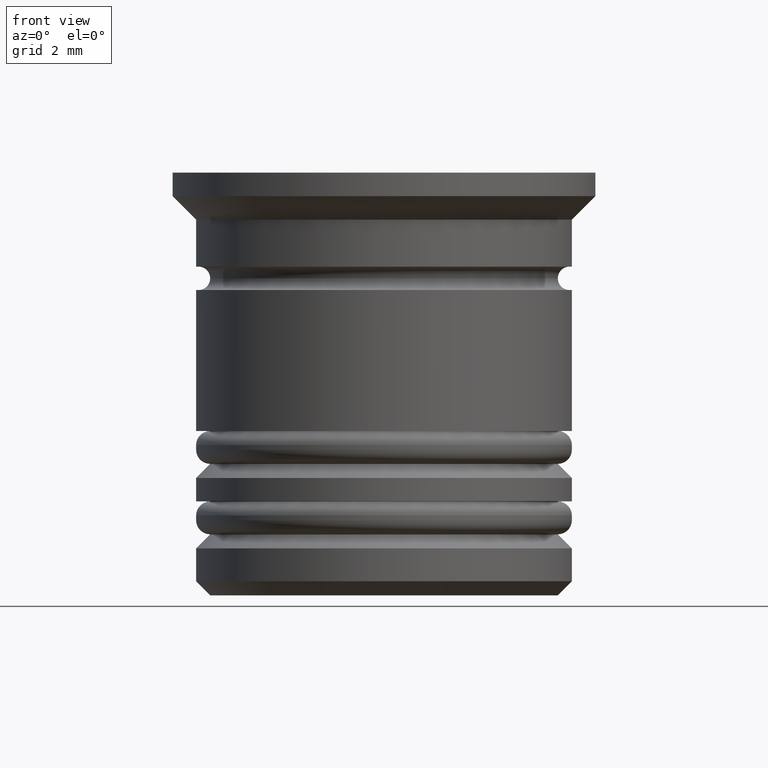
[diagram: clean part render]
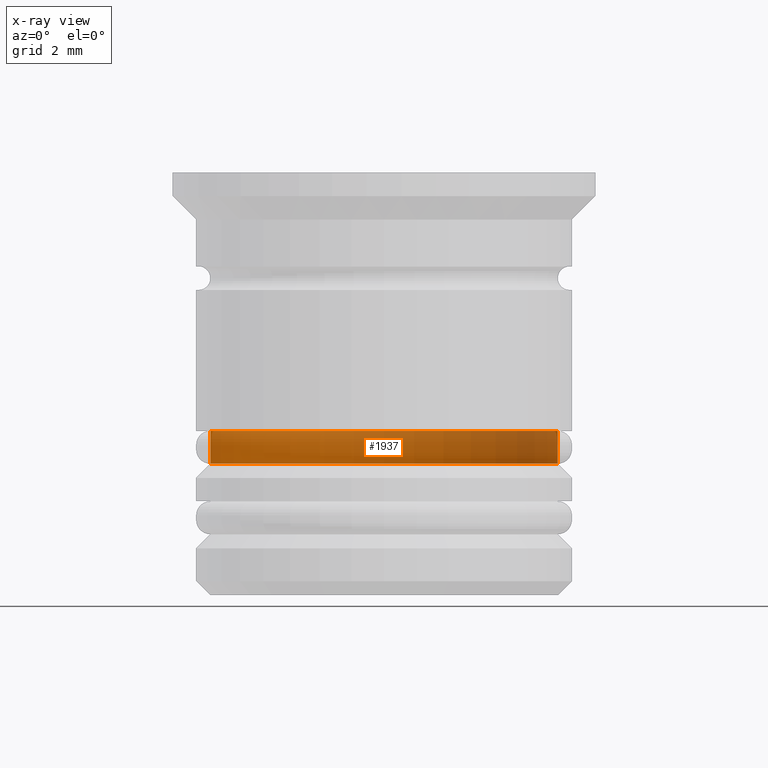
[diagram: x-ray — body ghosted, one internal face saturated and labeled with its STEP entity id]
A machine part, front view, then the same camera in x-ray: the body is ghosted and one INTERNAL B-rep face — a face not visible from any outside direction — is saturated and labeled: STEP entity #1937.
In plain terms, the highlighted cylindrical surface (partial cylindrical patch) has radius 3.7 mm, axis along (-0, -0, 1).
Its self-contained STEP definition (entity closure, byte-faithful):
#14 = ORIENTED_EDGE ( 'NONE', *, *, #2022, .F. ) ;
#25 = VERTEX_POINT ( 'NONE', #974 ) ;
#32 = EDGE_LOOP ( 'NONE', ( #814, #1965, #14, #1527 ) ) ;
#47 = CARTESIAN_POINT ( 'NONE',  ( 3.700000000000000178, 0.000000000000000000, -5.500000000000000000 ) ) ;
#119 = DIRECTION ( 'NONE',  ( -0.000000000000000000, -0.000000000000000000, 1.000000000000000000 ) ) ;
#214 = CIRCLE ( 'NONE', #1767, 3.700000000000000178 ) ;
#269 = DIRECTION ( 'NONE',  ( -0.000000000000000000, -0.000000000000000000, 1.000000000000000000 ) ) ;
#282 = DIRECTION ( 'NONE',  ( 1.000000000000000000, 0.000000000000000000, 0.000000000000000000 ) ) ;
#325 = DIRECTION ( 'NONE',  ( -1.000000000000000000, 0.000000000000000000, 0.000000000000000000 ) ) ;
#332 = EDGE_CURVE ( 'NONE', #1853, #25, #214, .T. ) ;
#404 = DIRECTION ( 'NONE',  ( 1.000000000000000000, 0.000000000000000000, 0.000000000000000000 ) ) ;
#528 = DIRECTION ( 'NONE',  ( -0.000000000000000000, -0.000000000000000000, 1.000000000000000000 ) ) ;
#566 = CYLINDRICAL_SURFACE ( 'NONE', #1604, 3.700000000000000178 ) ;
#766 = VECTOR ( 'NONE', #1778, 1000.000000000000000 ) ;
#799 = CARTESIAN_POINT ( 'NONE',  ( -3.700000000000000178, 4.531193156845206201E-16, -5.500000000000000000 ) ) ;
#814 = ORIENTED_EDGE ( 'NONE', *, *, #332, .T. ) ;
#974 = CARTESIAN_POINT ( 'NONE',  ( -3.700000000000000178, 4.531193156845206201E-16, -6.200000000000004619 ) ) ;
#998 = CARTESIAN_POINT ( 'NONE',  ( 3.700000000000000178, 0.000000000000000000, -6.200000000000004619 ) ) ;
#1103 = VERTEX_POINT ( 'NONE', #799 ) ;
#1142 = CARTESIAN_POINT ( 'NONE',  ( -3.700000000000000178, 4.531193156845206201E-16, 0.000000000000000000 ) ) ;
#1203 = VECTOR ( 'NONE', #269, 1000.000000000000000 ) ;
#1349 = FACE_OUTER_BOUND ( 'NONE', #32, .T. ) ;
#1420 = DIRECTION ( 'NONE',  ( -0.000000000000000000, -0.000000000000000000, 1.000000000000000000 ) ) ;
#1445 = EDGE_CURVE ( 'NONE', #1853, #1797, #1707, .T. ) ;
#1506 = CIRCLE ( 'NONE', #1766, 3.700000000000000178 ) ;
#1523 = CARTESIAN_POINT ( 'NONE',  ( 0.000000000000000000, 0.000000000000000000, -5.500000000000000000 ) ) ;
#1527 = ORIENTED_EDGE ( 'NONE', *, *, #1445, .F. ) ;
#1604 = AXIS2_PLACEMENT_3D ( 'NONE', #1974, #528, #404 ) ;
#1705 = EDGE_CURVE ( 'NONE', #25, #1103, #1798, .T. ) ;
#1707 = LINE ( 'NONE', #2004, #1203 ) ;
#1766 = AXIS2_PLACEMENT_3D ( 'NONE', #1523, #119, #282 ) ;
#1767 = AXIS2_PLACEMENT_3D ( 'NONE', #1856, #1420, #325 ) ;
#1778 = DIRECTION ( 'NONE',  ( -0.000000000000000000, -0.000000000000000000, 1.000000000000000000 ) ) ;
#1797 = VERTEX_POINT ( 'NONE', #47 ) ;
#1798 = LINE ( 'NONE', #1142, #766 ) ;
#1853 = VERTEX_POINT ( 'NONE', #998 ) ;
#1856 = CARTESIAN_POINT ( 'NONE',  ( 0.000000000000000000, 0.000000000000000000, -6.200000000000004619 ) ) ;
#1937 = ADVANCED_FACE ( 'NONE', ( #1349 ), #566, .T. ) ;
#1965 = ORIENTED_EDGE ( 'NONE', *, *, #1705, .T. ) ;
#1974 = CARTESIAN_POINT ( 'NONE',  ( 0.000000000000000000, 0.000000000000000000, 0.000000000000000000 ) ) ;
#2004 = CARTESIAN_POINT ( 'NONE',  ( 3.700000000000000178, 0.000000000000000000, 0.000000000000000000 ) ) ;
#2022 = EDGE_CURVE ( 'NONE', #1797, #1103, #1506, .T. ) ;